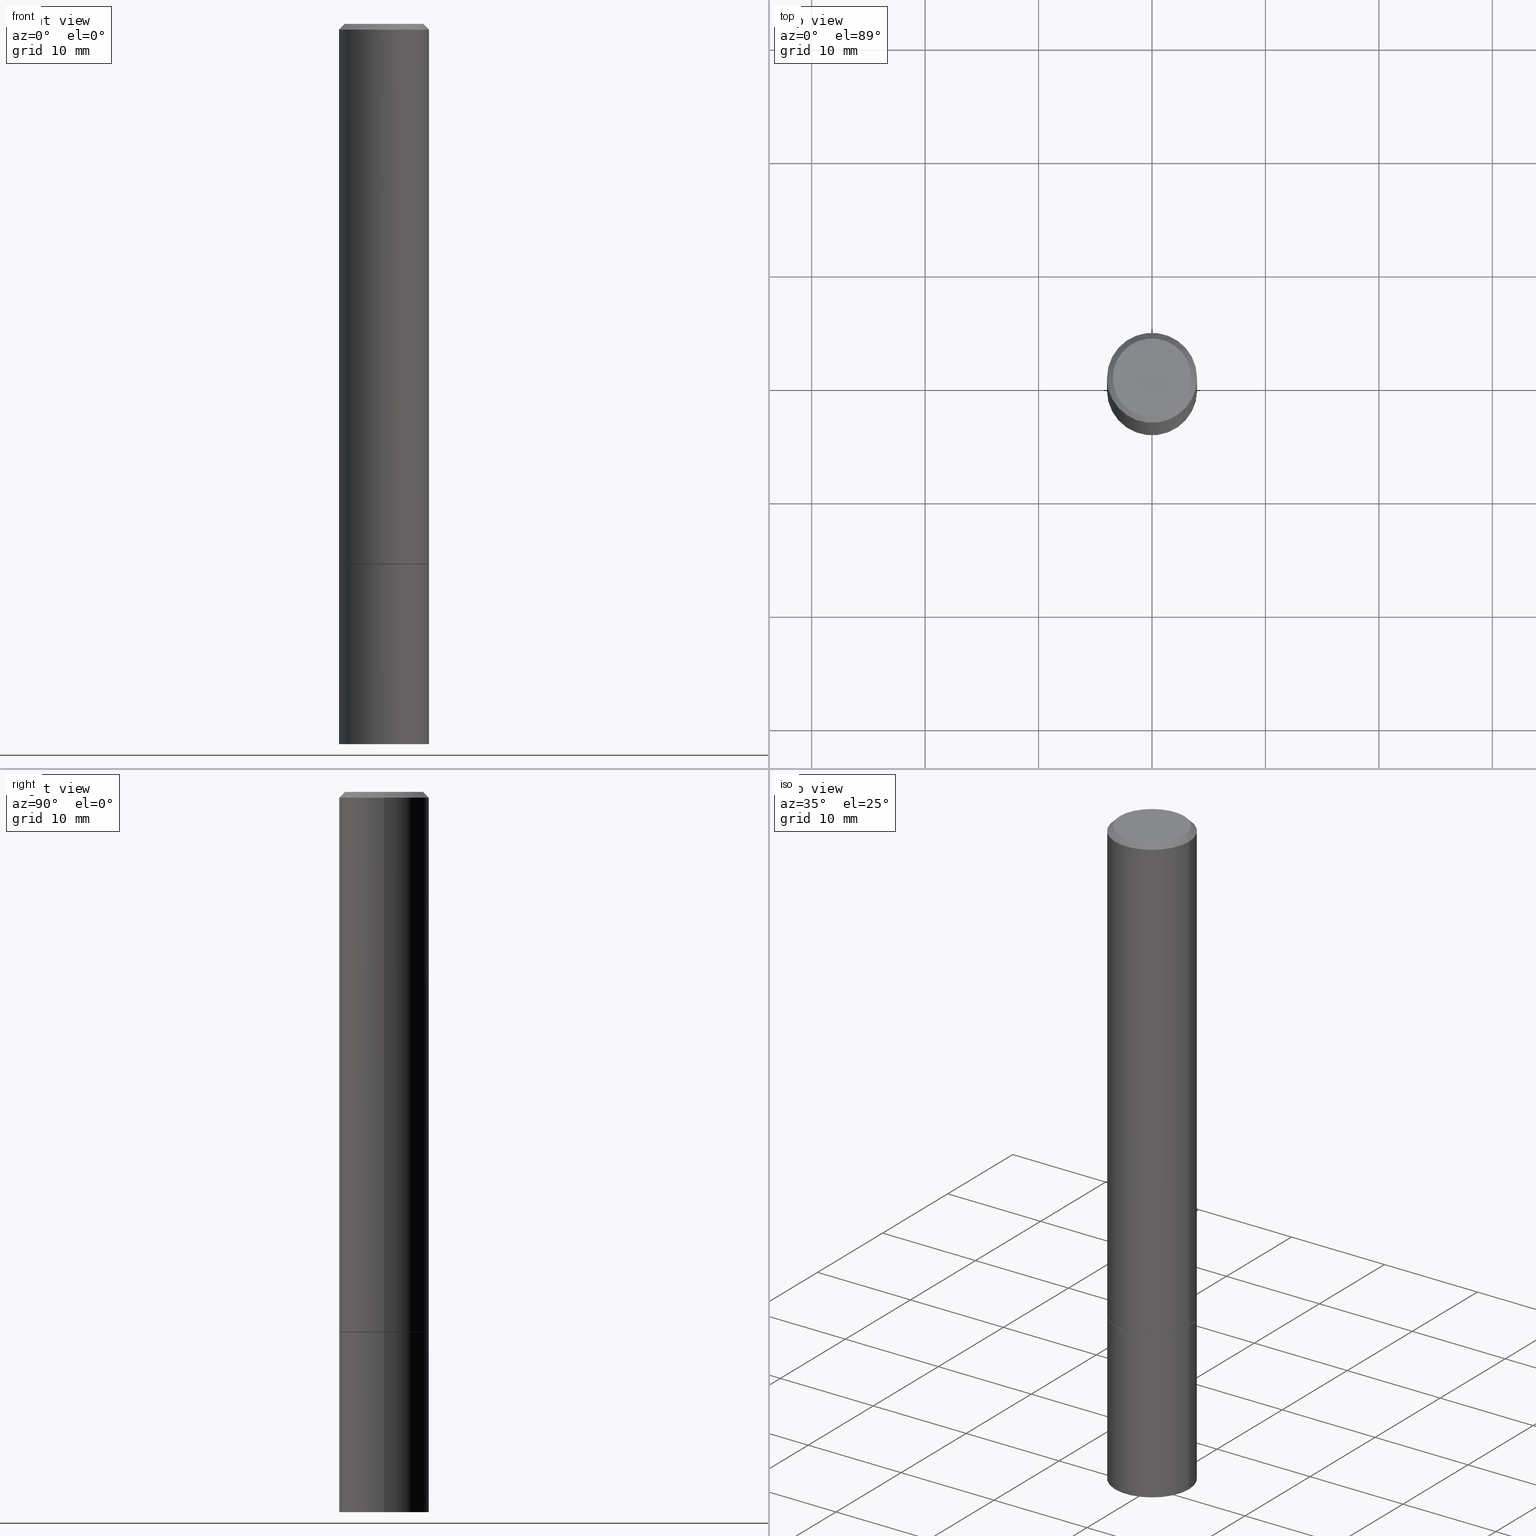
[diagram: canonical four-view strip — front | top / right | iso, engineering-drawing reading convention]
A machine part, canonical four-view strip (front | top / right | iso — engineering-drawing reading convention). The complete STEP part file that produces these views, byte-faithful:
ISO-10303-21;
HEADER;
FILE_DESCRIPTION (( 'STEP AP203' ),
    '1' );
FILE_NAME ('34707.STEP',
    '2024-02-27T16:49:16',
    ( '' ),
    ( '' ),
    'SwSTEP 2.0',
    'SolidWorks 2023',
    '' );
FILE_SCHEMA (( 'CONFIG_CONTROL_DESIGN' ));
ENDSEC;

DATA;
#1 =( CONVERSION_BASED_UNIT ( 'INCH', #198 ) LENGTH_UNIT ( ) NAMED_UNIT ( #37 ) );
#2 = ORIENTED_EDGE ( 'NONE', *, *, #125, .T. ) ;
#3 = EDGE_CURVE ( 'NONE', #252, #204, #235, .T. ) ;
#4 = VERTEX_POINT ( 'NONE', #42 ) ;
#5 = ORIENTED_EDGE ( 'NONE', *, *, #268, .T. ) ;
#6 = CARTESIAN_POINT ( 'NONE',  ( 1.091087918388524927E-15, 0.1562499999999934497, -1.875000000000000666 ) ) ;
#7 = EDGE_CURVE ( 'NONE', #4, #174, #178, .T. ) ;
#8 = COORDINATED_UNIVERSAL_TIME_OFFSET ( 5, 0, .BEHIND. ) ;
#9 = CARTESIAN_POINT ( 'NONE',  ( -0.1562499999999998057, 1.021258291611614495E-15, -0.02000000000000008021 ) ) ;
#10 = CC_DESIGN_PERSON_AND_ORGANIZATION_ASSIGNMENT ( #32, #167, ( #217 ) ) ;
#11 = DIRECTION ( 'NONE',  ( -0.7071067811865471286, 2.468850131082252722E-15, -0.7071067811865479058 ) ) ;
#12 = CLOSED_SHELL ( 'NONE', ( #324, #343, #86, #240, #296, #60, #162, #172 ) ) ;
#13 = DATE_AND_TIME ( #40, #141 ) ;
#14 = CIRCLE ( 'NONE', #319, 0.1562500000000000000 ) ;
#15 = LINE ( 'NONE', #124, #110 ) ;
#16 = DIRECTION ( 'NONE',  ( 1.000000000000000000, -6.982962677686269077E-15, 0.000000000000000000 ) ) ;
#17 = DIRECTION ( 'NONE',  ( -2.445468806185136597E-29, 3.491481338843145583E-15, 1.000000000000000000 ) ) ;
#18 = DIRECTION ( 'NONE',  ( -0.7071067811865232589, 7.493145998870265808E-15, 0.7071067811865715536 ) ) ;
#19 = CIRCLE ( 'NONE', #46, 0.1562499999999998057 ) ;
#20 = DIRECTION ( 'NONE',  ( -2.445468806185136597E-29, 3.491481338843145583E-15, 1.000000000000000000 ) ) ;
#21 = DIRECTION ( 'NONE',  ( 1.000000000000000000, -6.982962677686268288E-15, 0.000000000000000000 ) ) ;
#22 = EDGE_CURVE ( 'NONE', #29, #309, #194, .T. ) ;
#23 = CARTESIAN_POINT ( 'NONE',  ( 0.000000000000000000, 0.000000000000000000, 0.000000000000000000 ) ) ;
#24 = AXIS2_PLACEMENT_3D ( 'NONE', #105, #191, #271 ) ;
#25 = VECTOR ( 'NONE', #195, 39.37007874015748143 ) ;
#26 = COORDINATED_UNIVERSAL_TIME_OFFSET ( 5, 0, .BEHIND. ) ;
#27 = EDGE_LOOP ( 'NONE', ( #113, #310, #166, #199 ) ) ;
#28 = APPLICATION_PROTOCOL_DEFINITION ( 'international standard', 'config_control_design', 1994, #276 ) ;
#29 = VERTEX_POINT ( 'NONE', #39 ) ;
#30 = APPROVAL_DATE_TIME ( #279, #337 ) ;
#31 = PRODUCT_DEFINITION_FORMATION_WITH_SPECIFIED_SOURCE ( 'ANY', '', #122, .NOT_KNOWN. ) ;
#32 = PERSON_AND_ORGANIZATION ( #77, #100 ) ;
#33 = ORIENTED_EDGE ( 'NONE', *, *, #176, .F. ) ;
#34 = APPROVAL_STATUS ( 'not_yet_approved' ) ;
#35 = ORIENTED_EDGE ( 'NONE', *, *, #131, .F. ) ;
#36 = ORIENTED_EDGE ( 'NONE', *, *, #3, .T. ) ;
#37 = DIMENSIONAL_EXPONENTS ( 1.000000000000000000, 0.000000000000000000, 0.000000000000000000, 0.000000000000000000, 0.000000000000000000, 0.000000000000000000, 0.000000000000000000 ) ;
#38 = LINE ( 'NONE', #9, #117 ) ;
#39 = CARTESIAN_POINT ( 'NONE',  ( 0.1562499999999998057, -1.141782438928663724E-15, -0.02000000000000008021 ) ) ;
#40 = CALENDAR_DATE ( 2024, 27, 2 ) ;
#41 = CARTESIAN_POINT ( 'NONE',  ( 4.585254011597131119E-29, -6.546527510330898707E-15, -1.875000000000000000 ) ) ;
#42 = CARTESIAN_POINT ( 'NONE',  ( -0.1562500000000000000, -6.527392404094224496E-15, -1.875000000000000000 ) ) ;
#43 = PLANE ( 'NONE',  #24 ) ;
#44 = DIRECTION ( 'NONE',  ( 2.445468806185136597E-29, -3.491481338843145583E-15, -1.000000000000000000 ) ) ;
#45 = DIRECTION ( 'NONE',  ( 1.000000000000000000, -6.982962677686266711E-15, 4.876176775795936353E-29 ) ) ;
#46 = AXIS2_PLACEMENT_3D ( 'NONE', #94, #212, #294 ) ;
#47 = DIRECTION ( 'NONE',  ( -2.445468806185136597E-29, 3.491481338843145583E-15, 1.000000000000000000 ) ) ;
#48 = CARTESIAN_POINT ( 'NONE',  ( 4.890937612370293302E-31, -6.982962677686318726E-17, -0.02000000000000008021 ) ) ;
#49 = PERSON_AND_ORGANIZATION_ROLE ( 'classification_officer' ) ;
#50 = ORIENTED_EDGE ( 'NONE', *, *, #207, .F. ) ;
#51 = CALENDAR_DATE ( 2024, 27, 2 ) ;
#52 = ORIENTED_EDGE ( 'NONE', *, *, #154, .F. ) ;
#53 = COORDINATED_UNIVERSAL_TIME_OFFSET ( 5, 0, .BEHIND. ) ;
#54 = ORIENTED_EDGE ( 'NONE', *, *, #330, .F. ) ;
#55 = DATE_AND_TIME ( #142, #331 ) ;
#56 = AXIS2_PLACEMENT_3D ( 'NONE', #48, #44, #101 ) ;
#57 = CC_DESIGN_PERSON_AND_ORGANIZATION_ASSIGNMENT ( #334, #173, ( #31 ) ) ;
#58 = APPROVAL_ROLE ( '' ) ;
#59 = ORIENTED_EDGE ( 'NONE', *, *, #236, .F. ) ;
#60 = ADVANCED_FACE ( 'NONE', ( #232 ), #259, .T. ) ;
#61 = CARTESIAN_POINT ( 'NONE',  ( 0.1562499999999998057, -1.141782438928663724E-15, -0.02000000000000008021 ) ) ;
#62 = DIRECTION ( 'NONE',  ( -1.000000000000000000, 6.982962677686266711E-15, 0.000000000000000000 ) ) ;
#63 = AXIS2_PLACEMENT_3D ( 'NONE', #261, #266, #62 ) ;
#64 = APPROVAL_DATE_TIME ( #13, #210 ) ;
#65 = DIRECTION ( 'NONE',  ( -2.445468806185136597E-29, 3.491481338843145583E-15, 1.000000000000000000 ) ) ;
#66 = FACE_OUTER_BOUND ( 'NONE', #201, .T. ) ;
#67 = DIRECTION ( 'NONE',  ( 2.438088387897960049E-29, -3.491481338843145188E-15, -1.000000000000000000 ) ) ;
#68 = CC_DESIGN_APPROVAL ( #80, ( #217 ) ) ;
#69 = DIRECTION ( 'NONE',  ( 1.000000000000000000, -6.982962677686268288E-15, 0.000000000000000000 ) ) ;
#70 = ADVANCED_FACE ( 'NONE', ( #318 ), #262, .T. ) ;
#71 = DIRECTION ( 'NONE',  ( 1.000000000000000000, -6.982962677686266711E-15, 4.876176775795936353E-29 ) ) ;
#72 = PRODUCT_RELATED_PRODUCT_CATEGORY ( 'detail', '', ( #122 ) ) ;
#73 = DIRECTION ( 'NONE',  ( 1.000000000000000000, -6.982962677686266711E-15, 4.876176775795936353E-29 ) ) ;
#74 = AXIS2_PLACEMENT_3D ( 'NONE', #211, #65, #151 ) ;
#75 = CARTESIAN_POINT ( 'NONE',  ( -0.1362499999999997324, 9.863434782231834374E-16, -6.775751096333127272E-30 ) ) ;
#76 = CARTESIAN_POINT ( 'NONE',  ( 4.585254011597131119E-29, -6.546527510330898707E-15, -1.875000000000000000 ) ) ;
#77 = PERSON ( 'UNSPECIFIED', 'UNSPECIFIED', 'UNSPECIFIED', ('UNSPECIFIED'), ('UNSPECIFIED'), ('UNSPECIFIED') ) ;
#78 = DATE_AND_TIME ( #247, #251 ) ;
#79 = EDGE_LOOP ( 'NONE', ( #312, #248 ) ) ;
#80 = APPROVAL ( #81, 'UNSPECIFIED' ) ;
#81 = APPROVAL_STATUS ( 'not_yet_approved' ) ;
#82 = ORIENTED_EDGE ( 'NONE', *, *, #154, .T. ) ;
#83 = ORIENTED_EDGE ( 'NONE', *, *, #361, .T. ) ;
#84 = APPLICATION_PROTOCOL_DEFINITION ( 'international standard', 'config_control_design', 1994, #103 ) ;
#85 = EDGE_LOOP ( 'NONE', ( #315, #168, #116, #33 ) ) ;
#86 = ADVANCED_FACE ( 'NONE', ( #346 ), #366, .T. ) ;
#87 = CC_DESIGN_APPROVAL ( #210, ( #302 ) ) ;
#88 = MANIFOLD_SOLID_BREP ( 'Body-Move/Copy2[2]', #12 ) ;
#89 = ORIENTED_EDGE ( 'NONE', *, *, #268, .F. ) ;
#90 = DIRECTION ( 'NONE',  ( 2.438088387897960049E-29, -3.491481338843145188E-15, -1.000000000000000000 ) ) ;
#91 = DIRECTION ( 'NONE',  ( -2.445468806185136597E-29, 3.491481338843145583E-15, 1.000000000000000000 ) ) ;
#92 = CIRCLE ( 'NONE', #139, 0.1362499999999997324 ) ;
#93 = CONICAL_SURFACE ( 'NONE', #230, 0.1552499999999999991, 0.7853981633974141952 ) ;
#94 = CARTESIAN_POINT ( 'NONE',  ( 4.890937612370293302E-31, -6.982962677686318726E-17, -0.02000000000000008021 ) ) ;
#95 = SHAPE_DEFINITION_REPRESENTATION ( #130, #243 ) ;
#96 = DIRECTION ( 'NONE',  ( -1.000000000000000000, 6.982962677686265922E-15, -4.876176775795935793E-29 ) ) ;
#97 = CARTESIAN_POINT ( 'NONE',  ( 0.000000000000000000, 0.000000000000000000, 0.000000000000000000 ) ) ;
#98 = ADVANCED_FACE ( 'NONE', ( #209 ), #289, .F. ) ;
#99 = AXIS2_PLACEMENT_3D ( 'NONE', #123, #67, #182 ) ;
#100 = ORGANIZATION ( 'UNSPECIFIED', 'UNSPECIFIED', '' ) ;
#101 = DIRECTION ( 'NONE',  ( -1.000000000000000000, 6.982962677686266711E-15, 0.000000000000000000 ) ) ;
#102 = DIRECTION ( 'NONE',  ( -2.445468806185136597E-29, 3.491481338843145583E-15, 1.000000000000000000 ) ) ;
#103 = APPLICATION_CONTEXT ( 'configuration controlled 3d designs of mechanical parts and assemblies' ) ;
#104 = DIRECTION ( 'NONE',  ( -2.445468806185136597E-29, 3.491481338843145583E-15, 1.000000000000000000 ) ) ;
#105 = CARTESIAN_POINT ( 'NONE',  ( 1.091087918388540310E-15, 0.1562499999999912570, -2.500000000000000444 ) ) ;
#106 = CC_DESIGN_SECURITY_CLASSIFICATION ( #302, ( #31 ) ) ;
#107 = SECURITY_CLASSIFICATION_LEVEL ( 'unclassified' ) ;
#108 = ORIENTED_EDGE ( 'NONE', *, *, #22, .T. ) ;
#109 = APPROVAL_DATE_TIME ( #55, #80 ) ;
#110 = VECTOR ( 'NONE', #213, 39.37007874015748143 ) ;
#111 = ORIENTED_EDGE ( 'NONE', *, *, #176, .T. ) ;
#112 =( NAMED_UNIT ( * ) PLANE_ANGLE_UNIT ( ) SI_UNIT ( $, .RADIAN. ) );
#113 = ORIENTED_EDGE ( 'NONE', *, *, #361, .F. ) ;
#114 = PERSON_AND_ORGANIZATION ( #77, #100 ) ;
#115 = ORIENTED_EDGE ( 'NONE', *, *, #134, .F. ) ;
#116 = ORIENTED_EDGE ( 'NONE', *, *, #131, .T. ) ;
#117 = VECTOR ( 'NONE', #11, 39.37007874015748143 ) ;
#118 = DIRECTION ( 'NONE',  ( -2.445468806185136597E-29, 3.491481338843145583E-15, 1.000000000000000000 ) ) ;
#119 = LINE ( 'NONE', #351, #344 ) ;
#120 = PLANE ( 'NONE',  #281 ) ;
#121 = VECTOR ( 'NONE', #18, 39.37007874015748854 ) ;
#122 = PRODUCT ( '34707', '34707', '', ( #341 ) ) ;
#123 = CARTESIAN_POINT ( 'NONE',  ( 9.514286648347519855E-16, 0.1362499999999997324, -4.757143324173776691E-16 ) ) ;
#124 = CARTESIAN_POINT ( 'NONE',  ( 0.1562499999999999167, -1.091087918388478385E-15, 7.619026212181144772E-30 ) ) ;
#125 = EDGE_CURVE ( 'NONE', #280, #309, #38, .T. ) ;
#126 = DIRECTION ( 'NONE',  ( 1.000000000000000000, -6.982962677686268288E-15, 0.000000000000000000 ) ) ;
#127 = VECTOR ( 'NONE', #325, 39.37007874015748854 ) ;
#128 = LINE ( 'NONE', #219, #127 ) ;
#129 = FACE_OUTER_BOUND ( 'NONE', #206, .T. ) ;
#130 = PRODUCT_DEFINITION_SHAPE ( 'NONE', 'NONE',  #217 ) ;
#131 = EDGE_CURVE ( 'NONE', #287, #29, #15, .T. ) ;
#132 = CARTESIAN_POINT ( 'NONE',  ( 0.1562500000000000000, -9.819791265496344905E-15, -2.500000000000000000 ) ) ;
#133 = DIRECTION ( 'NONE',  ( 1.000000000000000000, -6.982962677686269077E-15, 0.000000000000000000 ) ) ;
#134 = EDGE_CURVE ( 'NONE', #252, #174, #119, .T. ) ;
#135 = DIRECTION ( 'NONE',  ( 1.000000000000000000, 0.000000000000000000, 0.000000000000000000 ) ) ;
#136 = ORIENTED_EDGE ( 'NONE', *, *, #22, .F. ) ;
#137 = CC_DESIGN_DATE_AND_TIME_ASSIGNMENT ( #78, #292, ( #302 ) ) ;
#138 = AXIS2_PLACEMENT_3D ( 'NONE', #222, #47, #328 ) ;
#139 = AXIS2_PLACEMENT_3D ( 'NONE', #360, #104, #71 ) ;
#140 = VERTEX_POINT ( 'NONE', #323 ) ;
#141 = LOCAL_TIME ( 11, 49, 16.00000000000000000, #8 ) ;
#142 = CALENDAR_DATE ( 2024, 27, 2 ) ;
#143 = VERTEX_POINT ( 'NONE', #352 ) ;
#144 = PERSON_AND_ORGANIZATION ( #77, #100 ) ;
#145 = ORIENTED_EDGE ( 'NONE', *, *, #192, .T. ) ;
#146 = ORIENTED_EDGE ( 'NONE', *, *, #263, .F. ) ;
#147 = AXIS2_PLACEMENT_3D ( 'NONE', #6, #90, #96 ) ;
#148 = APPROVAL_PERSON_ORGANIZATION ( #311, #337, #169 ) ;
#149 = CARTESIAN_POINT ( 'NONE',  ( 4.585254011597131119E-29, -6.546527510330898707E-15, -1.875000000000000000 ) ) ;
#150 = DIRECTION ( 'NONE',  ( 1.000000000000000000, -6.982962677686268288E-15, 0.000000000000000000 ) ) ;
#151 = DIRECTION ( 'NONE',  ( 1.000000000000000000, -6.982962677686269077E-15, 0.000000000000000000 ) ) ;
#152 = CIRCLE ( 'NONE', #295, 0.1362499999999997324 ) ;
#153 = LOCAL_TIME ( 11, 49, 16.00000000000000000, #339 ) ;
#154 = EDGE_CURVE ( 'NONE', #174, #4, #270, .T. ) ;
#155 = CARTESIAN_POINT ( 'NONE',  ( 4.585254011597131119E-29, -6.546527510330898707E-15, -1.875000000000000000 ) ) ;
#156 = CARTESIAN_POINT ( 'NONE',  ( -0.1562499999999999167, 1.110223024625155949E-15, -7.685836078523285555E-30 ) ) ;
#157 = DIRECTION ( 'NONE',  ( -2.445468806185136597E-29, 3.491481338843145583E-15, 1.000000000000000000 ) ) ;
#158 = AXIS2_PLACEMENT_3D ( 'NONE', #290, #118, #180 ) ;
#159 = CARTESIAN_POINT ( 'NONE',  ( 6.113672015462842613E-29, -8.728703347107864943E-15, -2.500000000000000000 ) ) ;
#160 = CARTESIAN_POINT ( 'NONE',  ( -0.1562499999999998057, 1.021258291611614495E-15, -0.02000000000000008021 ) ) ;
#161 = FACE_OUTER_BOUND ( 'NONE', #264, .T. ) ;
#162 = ADVANCED_FACE ( 'NONE', ( #179 ), #120, .F. ) ;
#163 =( LENGTH_UNIT ( ) NAMED_UNIT ( * ) SI_UNIT ( $, .METRE. ) );
#164 = ORIENTED_EDGE ( 'NONE', *, *, #192, .F. ) ;
#165 = DATE_TIME_ROLE ( 'creation_date' ) ;
#166 = ORIENTED_EDGE ( 'NONE', *, *, #134, .T. ) ;
#167 = PERSON_AND_ORGANIZATION_ROLE ( 'creator' ) ;
#168 = ORIENTED_EDGE ( 'NONE', *, *, #330, .T. ) ;
#169 = APPROVAL_ROLE ( '' ) ;
#170 = AXIS2_PLACEMENT_3D ( 'NONE', #97, #91, #321 ) ;
#171 = LOCAL_TIME ( 11, 49, 16.00000000000000000, #224 ) ;
#172 = ADVANCED_FACE ( 'NONE', ( #66 ), #238, .F. ) ;
#173 = PERSON_AND_ORGANIZATION_ROLE ( 'creator' ) ;
#174 = VERTEX_POINT ( 'NONE', #234 ) ;
#175 = DIRECTION ( 'NONE',  ( -2.445468806185136597E-29, 3.491481338843145583E-15, 1.000000000000000000 ) ) ;
#176 = EDGE_CURVE ( 'NONE', #309, #29, #19, .T. ) ;
#177 = DIRECTION ( 'NONE',  ( -2.445468806185136597E-29, 3.491481338843145583E-15, 1.000000000000000000 ) ) ;
#178 = CIRCLE ( 'NONE', #359, 0.1562500000000000000 ) ;
#179 = FACE_OUTER_BOUND ( 'NONE', #79, .T. ) ;
#180 = DIRECTION ( 'NONE',  ( 1.000000000000000000, -6.982962677686269077E-15, 0.000000000000000000 ) ) ;
#181 = APPROVAL_STATUS ( 'not_yet_approved' ) ;
#182 = DIRECTION ( 'NONE',  ( -1.000000000000000000, 6.982962677686265922E-15, -4.876176775795935793E-29 ) ) ;
#183 = AXIS2_PLACEMENT_3D ( 'NONE', #233, #177, #260 ) ;
#184 = APPROVAL_PERSON_ORGANIZATION ( #114, #80, #58 ) ;
#185 = CYLINDRICAL_SURFACE ( 'NONE', #245, 0.1562500000000000000 ) ;
#186 = CARTESIAN_POINT ( 'NONE',  ( -0.1552499999999999991, -5.443409913063343964E-15, -1.875000000000000000 ) ) ;
#187 = CARTESIAN_POINT ( 'NONE',  ( -0.1552499999999999991, -5.438111458715121561E-15, -1.875000000000000000 ) ) ;
#188 = AXIS2_PLACEMENT_3D ( 'NONE', #149, #348, #150 ) ;
#189 = AXIS2_PLACEMENT_3D ( 'NONE', #76, #305, #126 ) ;
#190 = FACE_OUTER_BOUND ( 'NONE', #231, .T. ) ;
#191 = DIRECTION ( 'NONE',  ( 2.438088387897960049E-29, -3.491481338843145188E-15, -1.000000000000000000 ) ) ;
#192 = EDGE_CURVE ( 'NONE', #140, #29, #316, .T. ) ;
#193 = PERSON_AND_ORGANIZATION ( #77, #100 ) ;
#194 = CIRCLE ( 'NONE', #183, 0.1562499999999998057 ) ;
#195 = DIRECTION ( 'NONE',  ( -2.445468806185136877E-29, 3.491481338843145188E-15, 1.000000000000000000 ) ) ;
#196 = AXIS2_PLACEMENT_3D ( 'NONE', #267, #17, #253 ) ;
#197 = ORIENTED_EDGE ( 'NONE', *, *, #256, .T. ) ;
#198 = LENGTH_MEASURE_WITH_UNIT ( LENGTH_MEASURE( 0.02539999999999999897 ), #163 );
#199 = ORIENTED_EDGE ( 'NONE', *, *, #7, .F. ) ;
#200 = DATE_AND_TIME ( #51, #153 ) ;
#201 = EDGE_LOOP ( 'NONE', ( #363, #335 ) ) ;
#202 = EDGE_CURVE ( 'NONE', #140, #280, #92, .T. ) ;
#203 = LINE ( 'NONE', #362, #25 ) ;
#204 = VERTEX_POINT ( 'NONE', #218 ) ;
#205 = CC_DESIGN_DATE_AND_TIME_ASSIGNMENT ( #200, #165, ( #217 ) ) ;
#206 = EDGE_LOOP ( 'NONE', ( #197, #5, #146, #59 ) ) ;
#207 = EDGE_CURVE ( 'NONE', #204, #252, #354, .T. ) ;
#208 = PERSON_AND_ORGANIZATION ( #77, #100 ) ;
#209 = FACE_OUTER_BOUND ( 'NONE', #254, .T. ) ;
#210 = APPROVAL ( #181, 'UNSPECIFIED' ) ;
#211 = CARTESIAN_POINT ( 'NONE',  ( 4.585254011597131119E-29, -6.546527510330898707E-15, -1.875000000000000000 ) ) ;
#212 = DIRECTION ( 'NONE',  ( -2.445468806185136597E-29, 3.491481338843145583E-15, 1.000000000000000000 ) ) ;
#213 = DIRECTION ( 'NONE',  ( -2.445468806185136877E-29, 3.491481338843145188E-15, 1.000000000000000000 ) ) ;
#214 = FACE_OUTER_BOUND ( 'NONE', #345, .T. ) ;
#215 = MANIFOLD_SOLID_BREP ( 'Body-Move/Copy2[1]', #349 ) ;
#216 = LINE ( 'NONE', #186, #121 ) ;
#217 = PRODUCT_DEFINITION ( 'UNKNOWN', '', #31, #284 ) ;
#218 = CARTESIAN_POINT ( 'NONE',  ( -0.1562500000000000000, -6.527392404094224496E-15, -2.500000000000000000 ) ) ;
#219 = CARTESIAN_POINT ( 'NONE',  ( 0.1552499999999999991, -7.630632466041692655E-15, -1.875000000000000000 ) ) ;
#220 = AXIS2_PLACEMENT_3D ( 'NONE', #159, #20, #133 ) ;
#221 = CIRCLE ( 'NONE', #189, 0.1552499999999999991 ) ;
#222 = CARTESIAN_POINT ( 'NONE',  ( 4.582808542790945516E-29, -6.543036028992054911E-15, -1.874000000000000110 ) ) ;
#223 = ORIENTED_EDGE ( 'NONE', *, *, #7, .T. ) ;
#224 = COORDINATED_UNIVERSAL_TIME_OFFSET ( 5, 0, .BEHIND. ) ;
#225 = ORIENTED_EDGE ( 'NONE', *, *, #3, .F. ) ;
#226 = ORIENTED_EDGE ( 'NONE', *, *, #125, .F. ) ;
#227 = CALENDAR_DATE ( 2024, 27, 2 ) ;
#228 = VERTEX_POINT ( 'NONE', #187 ) ;
#229 = AXIS2_PLACEMENT_3D ( 'NONE', #242, #298, #269 ) ;
#230 = AXIS2_PLACEMENT_3D ( 'NONE', #356, #102, #21 ) ;
#231 = EDGE_LOOP ( 'NONE', ( #164, #249, #2, #111 ) ) ;
#232 = FACE_OUTER_BOUND ( 'NONE', #278, .T. ) ;
#233 = CARTESIAN_POINT ( 'NONE',  ( 4.890937612370293302E-31, -6.982962677686318726E-17, -0.02000000000000008021 ) ) ;
#234 = CARTESIAN_POINT ( 'NONE',  ( 0.1562500000000000000, -7.637615428719378669E-15, -1.875000000000000000 ) ) ;
#235 = CIRCLE ( 'NONE', #158, 0.1562500000000000000 ) ;
#236 = EDGE_CURVE ( 'NONE', #340, #287, #128, .T. ) ;
#237 = DIRECTION ( 'NONE',  ( 1.000000000000000000, -6.982962677686265922E-15, 4.876176775795935793E-29 ) ) ;
#238 = PLANE ( 'NONE',  #99 ) ;
#239 = DIRECTION ( 'NONE',  ( -2.445468806185136877E-29, 3.491481338843145188E-15, 1.000000000000000000 ) ) ;
#240 = ADVANCED_FACE ( 'NONE', ( #190 ), #250, .T. ) ;
#241 = DIRECTION ( 'NONE',  ( -2.445468806185136597E-29, 3.491481338843145583E-15, 1.000000000000000000 ) ) ;
#242 = CARTESIAN_POINT ( 'NONE',  ( 0.000000000000000000, 0.000000000000000000, 0.000000000000000000 ) ) ;
#243 = ADVANCED_BREP_SHAPE_REPRESENTATION ( '34707', ( #215, #88, #308 ), #265 ) ;
#244 = FACE_OUTER_BOUND ( 'NONE', #275, .T. ) ;
#245 = AXIS2_PLACEMENT_3D ( 'NONE', #23, #157, #73 ) ;
#246 = CARTESIAN_POINT ( 'NONE',  ( 0.000000000000000000, 0.000000000000000000, 0.000000000000000000 ) ) ;
#247 = CALENDAR_DATE ( 2024, 27, 2 ) ;
#248 = ORIENTED_EDGE ( 'NONE', *, *, #333, .F. ) ;
#249 = ORIENTED_EDGE ( 'NONE', *, *, #291, .F. ) ;
#250 = CONICAL_SURFACE ( 'NONE', #56, 0.1562499999999998057, 0.7853981633974477239 ) ;
#251 = LOCAL_TIME ( 11, 49, 16.00000000000000000, #26 ) ;
#252 = VERTEX_POINT ( 'NONE', #132 ) ;
#253 = DIRECTION ( 'NONE',  ( 1.000000000000000000, -6.982962677686265133E-15, 4.876176775795935232E-29 ) ) ;
#254 = EDGE_LOOP ( 'NONE', ( #82, #223 ) ) ;
#255 = PERSON_AND_ORGANIZATION_ROLE ( 'design_supplier' ) ;
#256 = EDGE_CURVE ( 'NONE', #340, #228, #336, .T. ) ;
#257 = ORIENTED_EDGE ( 'NONE', *, *, #285, .T. ) ;
#258 = UNCERTAINTY_MEASURE_WITH_UNIT (LENGTH_MEASURE( 1.000000000000000082E-05 ), #1, 'distance_accuracy_value', 'NONE');
#259 = CONICAL_SURFACE ( 'NONE', #188, 0.1552499999999999991, 0.7853981633974141952 ) ;
#260 = DIRECTION ( 'NONE',  ( 1.000000000000000000, -6.982962677686266711E-15, 0.000000000000000000 ) ) ;
#261 = CARTESIAN_POINT ( 'NONE',  ( 4.890937612370293302E-31, -6.982962677686318726E-17, -0.02000000000000008021 ) ) ;
#262 = CYLINDRICAL_SURFACE ( 'NONE', #170, 0.1562500000000000000 ) ;
#263 = EDGE_CURVE ( 'NONE', #287, #143, #300, .T. ) ;
#264 = EDGE_LOOP ( 'NONE', ( #293, #257, #136, #35 ) ) ;
#265 =( GEOMETRIC_REPRESENTATION_CONTEXT ( 3 ) GLOBAL_UNCERTAINTY_ASSIGNED_CONTEXT ( ( #258 ) ) GLOBAL_UNIT_ASSIGNED_CONTEXT ( ( #1, #112, #286 ) ) REPRESENTATION_CONTEXT ( 'NONE', 'WORKASPACE' ) );
#266 = DIRECTION ( 'NONE',  ( 2.445468806185136597E-29, -3.491481338843145583E-15, -1.000000000000000000 ) ) ;
#267 = CARTESIAN_POINT ( 'NONE',  ( 0.000000000000000000, 0.000000000000000000, 0.000000000000000000 ) ) ;
#268 = EDGE_CURVE ( 'NONE', #228, #143, #216, .T. ) ;
#269 = DIRECTION ( 'NONE',  ( 1.000000000000000000, -6.982962677686265133E-15, 4.876176775795935232E-29 ) ) ;
#270 = CIRCLE ( 'NONE', #74, 0.1562500000000000000 ) ;
#271 = DIRECTION ( 'NONE',  ( -1.000000000000000000, 6.982962677686265922E-15, -4.876176775795935793E-29 ) ) ;
#272 = DIRECTION ( 'NONE',  ( 1.000000000000000000, -6.982962677686269077E-15, 0.000000000000000000 ) ) ;
#273 = ADVANCED_FACE ( 'NONE', ( #244 ), #185, .T. ) ;
#274 = CYLINDRICAL_SURFACE ( 'NONE', #196, 0.1562499999999999167 ) ;
#275 = EDGE_LOOP ( 'NONE', ( #36, #83, #52, #115 ) ) ;
#276 = APPLICATION_CONTEXT ( 'configuration controlled 3d designs of mechanical parts and assemblies' ) ;
#277 = CARTESIAN_POINT ( 'NONE',  ( 0.000000000000000000, 0.000000000000000000, 0.000000000000000000 ) ) ;
#278 = EDGE_LOOP ( 'NONE', ( #89, #338, #283, #54 ) ) ;
#279 = DATE_AND_TIME ( #227, #171 ) ;
#280 = VERTEX_POINT ( 'NONE', #75 ) ;
#281 = AXIS2_PLACEMENT_3D ( 'NONE', #155, #350, #237 ) ;
#282 = DIRECTION ( 'NONE',  ( 0.000000000000000000, 0.000000000000000000, 1.000000000000000000 ) ) ;
#283 = ORIENTED_EDGE ( 'NONE', *, *, #236, .T. ) ;
#284 = DESIGN_CONTEXT ( 'detailed design', #103, 'design' ) ;
#285 = EDGE_CURVE ( 'NONE', #143, #309, #332, .T. ) ;
#286 =( NAMED_UNIT ( * ) SI_UNIT ( $, .STERADIAN. ) SOLID_ANGLE_UNIT ( ) );
#287 = VERTEX_POINT ( 'NONE', #297 ) ;
#288 = DIRECTION ( 'NONE',  ( 0.7071067811865471286, -7.319954787623254468E-15, -0.7071067811865479058 ) ) ;
#289 = PLANE ( 'NONE',  #147 ) ;
#290 = CARTESIAN_POINT ( 'NONE',  ( 6.113672015462842613E-29, -8.728703347107864943E-15, -2.500000000000000000 ) ) ;
#291 = EDGE_CURVE ( 'NONE', #280, #140, #152, .T. ) ;
#292 = DATE_TIME_ROLE ( 'classification_date' ) ;
#293 = ORIENTED_EDGE ( 'NONE', *, *, #263, .T. ) ;
#294 = DIRECTION ( 'NONE',  ( 1.000000000000000000, -6.982962677686266711E-15, 0.000000000000000000 ) ) ;
#295 = AXIS2_PLACEMENT_3D ( 'NONE', #246, #327, #45 ) ;
#296 = ADVANCED_FACE ( 'NONE', ( #329 ), #358, .T. ) ;
#297 = CARTESIAN_POINT ( 'NONE',  ( 0.1562500000000000000, -7.634123947380534085E-15, -1.874000000000000110 ) ) ;
#298 = DIRECTION ( 'NONE',  ( -2.445468806185136597E-29, 3.491481338843145583E-15, 1.000000000000000000 ) ) ;
#299 = CARTESIAN_POINT ( 'NONE',  ( 4.585254011597131119E-29, -6.546527510330898707E-15, -1.875000000000000000 ) ) ;
#300 = CIRCLE ( 'NONE', #138, 0.1562500000000000000 ) ;
#301 = AXIS2_PLACEMENT_3D ( 'NONE', #299, #241, #69 ) ;
#302 = SECURITY_CLASSIFICATION ( '', '', #107 ) ;
#303 = DIRECTION ( 'NONE',  ( -2.445468806185136597E-29, 3.491481338843145583E-15, 1.000000000000000000 ) ) ;
#304 = ADVANCED_FACE ( 'NONE', ( #214 ), #43, .T. ) ;
#305 = DIRECTION ( 'NONE',  ( -2.445468806185136597E-29, 3.491481338843145583E-15, 1.000000000000000000 ) ) ;
#306 = PERSON_AND_ORGANIZATION ( #77, #100 ) ;
#307 = VECTOR ( 'NONE', #288, 39.37007874015748143 ) ;
#308 = AXIS2_PLACEMENT_3D ( 'NONE', #277, #282, #135 ) ;
#309 = VERTEX_POINT ( 'NONE', #160 ) ;
#310 = ORIENTED_EDGE ( 'NONE', *, *, #207, .T. ) ;
#311 = PERSON_AND_ORGANIZATION ( #77, #100 ) ;
#312 = ORIENTED_EDGE ( 'NONE', *, *, #256, .F. ) ;
#313 = VECTOR ( 'NONE', #239, 39.37007874015748143 ) ;
#314 = PERSON_AND_ORGANIZATION_ROLE ( 'design_owner' ) ;
#315 = ORIENTED_EDGE ( 'NONE', *, *, #285, .F. ) ;
#316 = LINE ( 'NONE', #61, #307 ) ;
#317 = APPROVAL_ROLE ( '' ) ;
#318 = FACE_OUTER_BOUND ( 'NONE', #27, .T. ) ;
#319 = AXIS2_PLACEMENT_3D ( 'NONE', #357, #303, #272 ) ;
#320 = DIRECTION ( 'NONE',  ( -2.445468806185136877E-29, 3.491481338843145188E-15, 1.000000000000000000 ) ) ;
#321 = DIRECTION ( 'NONE',  ( 1.000000000000000000, -6.982962677686266711E-15, 4.876176775795936353E-29 ) ) ;
#322 = CC_DESIGN_PERSON_AND_ORGANIZATION_ASSIGNMENT ( #306, #49, ( #302 ) ) ;
#323 = CARTESIAN_POINT ( 'NONE',  ( 0.1362499999999997324, -1.038262645562516547E-15, 6.957025900226683865E-30 ) ) ;
#324 = ADVANCED_FACE ( 'NONE', ( #129 ), #93, .T. ) ;
#325 = DIRECTION ( 'NONE',  ( 0.7071067811865232589, -2.468850131082003836E-15, 0.7071067811865715536 ) ) ;
#326 = APPROVAL_PERSON_ORGANIZATION ( #208, #210, #317 ) ;
#327 = DIRECTION ( 'NONE',  ( -2.445468806185136597E-29, 3.491481338843145583E-15, 1.000000000000000000 ) ) ;
#328 = DIRECTION ( 'NONE',  ( 1.000000000000000000, -6.982962677686269077E-15, 0.000000000000000000 ) ) ;
#329 = FACE_OUTER_BOUND ( 'NONE', #85, .T. ) ;
#330 = EDGE_CURVE ( 'NONE', #143, #287, #14, .T. ) ;
#331 = LOCAL_TIME ( 11, 49, 16.00000000000000000, #53 ) ;
#332 = LINE ( 'NONE', #156, #313 ) ;
#333 = EDGE_CURVE ( 'NONE', #228, #340, #221, .T. ) ;
#334 = PERSON_AND_ORGANIZATION ( #77, #100 ) ;
#335 = ORIENTED_EDGE ( 'NONE', *, *, #202, .T. ) ;
#336 = CIRCLE ( 'NONE', #301, 0.1552499999999999991 ) ;
#337 = APPROVAL ( #34, 'UNSPECIFIED' ) ;
#338 = ORIENTED_EDGE ( 'NONE', *, *, #333, .T. ) ;
#339 = COORDINATED_UNIVERSAL_TIME_OFFSET ( 5, 0, .BEHIND. ) ;
#340 = VERTEX_POINT ( 'NONE', #353 ) ;
#341 = MECHANICAL_CONTEXT ( 'NONE', #276, 'mechanical' ) ;
#342 = ORIENTED_EDGE ( 'NONE', *, *, #202, .F. ) ;
#343 = ADVANCED_FACE ( 'NONE', ( #161 ), #274, .T. ) ;
#344 = VECTOR ( 'NONE', #320, 39.37007874015748143 ) ;
#345 = EDGE_LOOP ( 'NONE', ( #225, #50 ) ) ;
#346 = FACE_OUTER_BOUND ( 'NONE', #365, .T. ) ;
#347 = CC_DESIGN_PERSON_AND_ORGANIZATION_ASSIGNMENT ( #193, #314, ( #122 ) ) ;
#348 = DIRECTION ( 'NONE',  ( -2.445468806185136597E-29, 3.491481338843145583E-15, 1.000000000000000000 ) ) ;
#349 = CLOSED_SHELL ( 'NONE', ( #273, #304, #98, #70 ) ) ;
#350 = DIRECTION ( 'NONE',  ( -2.438088387897960049E-29, 3.491481338843145188E-15, 1.000000000000000000 ) ) ;
#351 = CARTESIAN_POINT ( 'NONE',  ( 0.1562500000000000000, -1.091087918388479174E-15, 7.619026212181150377E-30 ) ) ;
#352 = CARTESIAN_POINT ( 'NONE',  ( -0.1562500000000000000, -2.196209803259300592E-15, -1.874000000000000110 ) ) ;
#353 = CARTESIAN_POINT ( 'NONE',  ( 0.1552499999999999991, -7.630632466041692655E-15, -1.875000000000000000 ) ) ;
#354 = CIRCLE ( 'NONE', #220, 0.1562500000000000000 ) ;
#355 = CC_DESIGN_APPROVAL ( #337, ( #31 ) ) ;
#356 = CARTESIAN_POINT ( 'NONE',  ( 4.585254011597131119E-29, -6.546527510330898707E-15, -1.875000000000000000 ) ) ;
#357 = CARTESIAN_POINT ( 'NONE',  ( 4.582808542790945516E-29, -6.543036028992054911E-15, -1.874000000000000110 ) ) ;
#358 = CYLINDRICAL_SURFACE ( 'NONE', #229, 0.1562499999999999167 ) ;
#359 = AXIS2_PLACEMENT_3D ( 'NONE', #41, #175, #16 ) ;
#360 = CARTESIAN_POINT ( 'NONE',  ( 0.000000000000000000, 0.000000000000000000, 0.000000000000000000 ) ) ;
#361 = EDGE_CURVE ( 'NONE', #204, #4, #203, .T. ) ;
#362 = CARTESIAN_POINT ( 'NONE',  ( -0.1562500000000000000, 1.110223024625156540E-15, -7.685836078523291160E-30 ) ) ;
#363 = ORIENTED_EDGE ( 'NONE', *, *, #291, .T. ) ;
#364 = CC_DESIGN_PERSON_AND_ORGANIZATION_ASSIGNMENT ( #144, #255, ( #31 ) ) ;
#365 = EDGE_LOOP ( 'NONE', ( #342, #145, #108, #226 ) ) ;
#366 = CONICAL_SURFACE ( 'NONE', #63, 0.1562499999999998057, 0.7853981633974477239 ) ;
ENDSEC;
END-ISO-10303-21;
